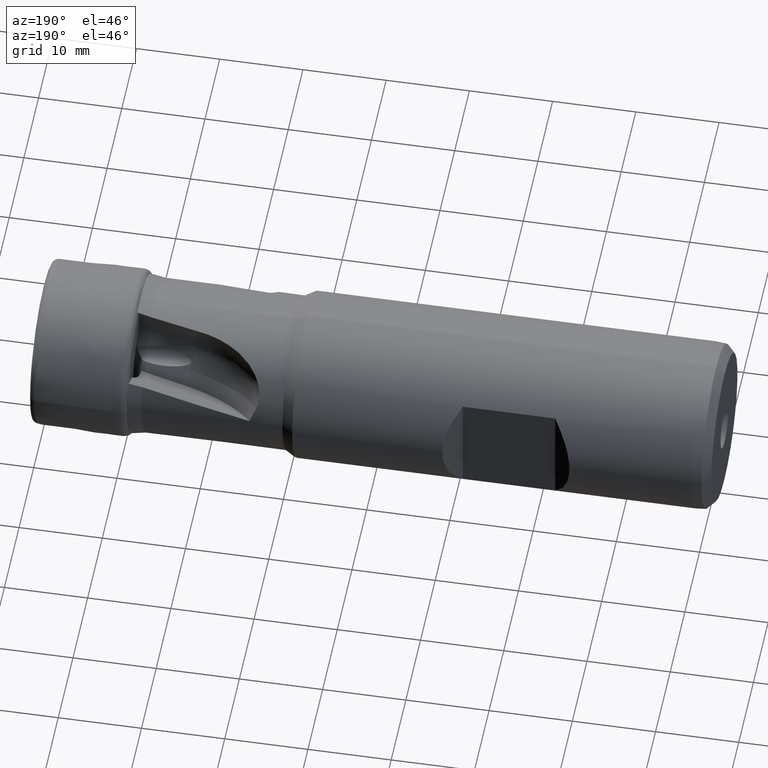
[diagram: clean part render]
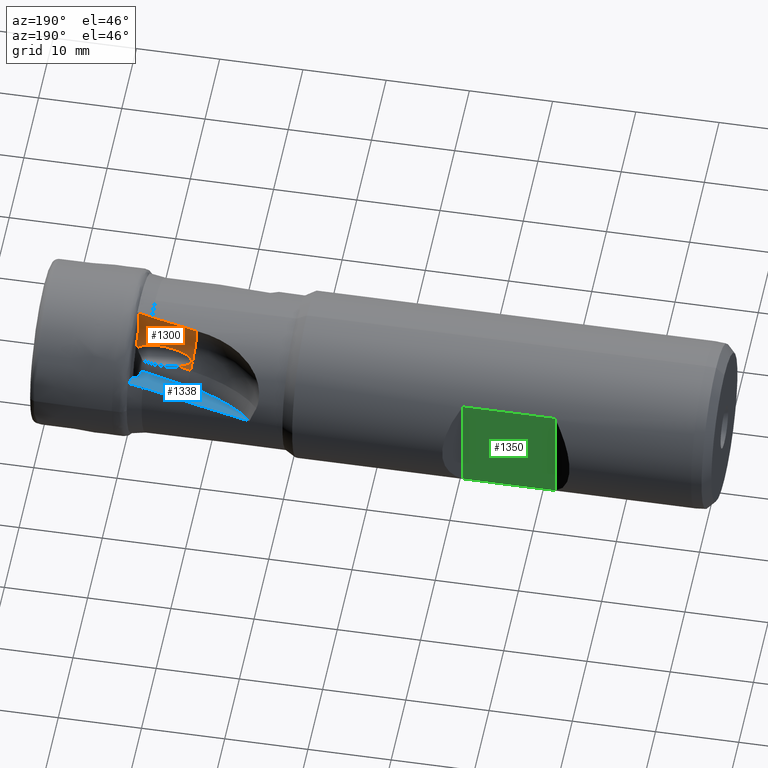
[diagram: same view with three faces highlighted in distinct colors, each labeled with its STEP entity id]
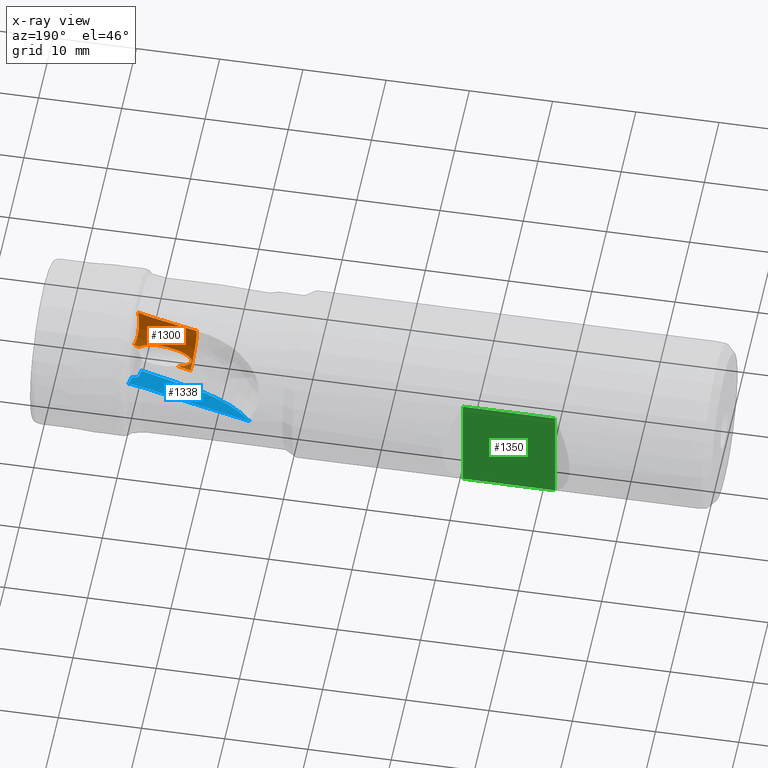
[diagram: x-ray of the same camera — body ghosted, the three highlighted faces saturated]
A machine part, auxiliary view with three faces highlighted in distinct colors.
The next image is the same camera in x-ray (body ghosted, the three faces saturated) — at least one of them is partly hidden behind the body in this view.
Their STEP definitions:

[orange] entity #1300 — the highlighted face is a freeform B-spline surface patch.
#116 = VERTEX_POINT ( 'NONE', #2259 ) ;
#124 = VERTEX_POINT ( 'NONE', #2232 ) ;
#177 = VERTEX_POINT ( 'NONE', #2177 ) ;
#262 = VERTEX_POINT ( 'NONE', #2156 ) ;
#297 = VERTEX_POINT ( 'NONE', #2001 ) ;
#310 = VERTEX_POINT ( 'NONE', #2191 ) ;
#319 = VERTEX_POINT ( 'NONE', #2003 ) ;
#354 = ORIENTED_EDGE ( 'NONE', *, *, #3125, .F. ) ;
#370 = ORIENTED_EDGE ( 'NONE', *, *, #1220, .T. ) ;
#398 = ORIENTED_EDGE ( 'NONE', *, *, #1807, .F. ) ;
#400 = VERTEX_POINT ( 'NONE', #2295 ) ;
#421 = ORIENTED_EDGE ( 'NONE', *, *, #1196, .T. ) ;
#437 = VERTEX_POINT ( 'NONE', #2053 ) ;
#439 = ORIENTED_EDGE ( 'NONE', *, *, #3134, .F. ) ;
#442 = ORIENTED_EDGE ( 'NONE', *, *, #3126, .T. ) ;
#443 = ORIENTED_EDGE ( 'NONE', *, *, #3143, .T. ) ;
#463 = ORIENTED_EDGE ( 'NONE', *, *, #3142, .F. ) ;
#481 = ORIENTED_EDGE ( 'NONE', *, *, #1657, .T. ) ;
#1190 = FACE_OUTER_BOUND ( 'NONE', #4072, .T. ) ;
#1196 = EDGE_CURVE ( 'NONE', #177, #116, #3405, .T. ) ;
#1220 = EDGE_CURVE ( 'NONE', #124, #297, #3386, .T. ) ;
#1300 = ADVANCED_FACE ( 'NONE', ( #1190 ), #3411, .F. ) ;
#1657 = EDGE_CURVE ( 'NONE', #400, #437, #3289, .T. ) ;
#1784 = AXIS2_PLACEMENT_3D ( 'NONE', #3604, #3605, #3606 ) ;
#1797 = VECTOR ( 'NONE', #3682, 1000.000000000000100 ) ;
#1806 = LINE ( 'NONE', #3680, #1797 ) ;
#1807 = EDGE_CURVE ( 'NONE', #310, #116, #5012, .T. ) ;
#1933 = CARTESIAN_POINT ( 'NONE',  ( -17.46522689833240700, 2.799821953168184100, 2.183394017990658100 ) ) ;
#1951 = CARTESIAN_POINT ( 'NONE',  ( -16.94430054065681500, 2.912568009919917200, 1.911020669193566500 ) ) ;
#1956 = CARTESIAN_POINT ( 'NONE',  ( -16.13219586055020800, 3.010105745236067300, 1.713733694591605100 ) ) ;
#1961 = CARTESIAN_POINT ( 'NONE',  ( -16.60396216011053700, 2.961945548118454200, 1.804178023644419400 ) ) ;
#1962 = CARTESIAN_POINT ( 'NONE',  ( -17.26957665637938200, 2.852614918489111000, 2.050427739889873800 ) ) ;
#1963 = CARTESIAN_POINT ( 'NONE',  ( -16.36887203447431100, 2.988090758630610000, 1.753449781759514900 ) ) ;
#2001 = CARTESIAN_POINT ( 'NONE',  ( -10.65883506706973600, 2.107348991518373600, 3.427514095784790300 ) ) ;
#2003 = CARTESIAN_POINT ( 'NONE',  ( -10.96232459309051200, 2.138623425094442300, 3.371093524094496400 ) ) ;
#2044 = CARTESIAN_POINT ( 'NONE',  ( -17.05540043705521600, 2.894448306274053800, 1.951701670853473600 ) ) ;
#2053 = CARTESIAN_POINT ( 'NONE',  ( -12.83564090980890700, 2.466131658906649500, 8.915194593554289800 ) ) ;
#2156 = CARTESIAN_POINT ( 'NONE',  ( -11.17752535863014200, 2.183543052836082400, 3.277802954148884700 ) ) ;
#2177 = CARTESIAN_POINT ( 'NONE',  ( -17.46522689833240700, 2.799821953168184100, 2.183394017990658100 ) ) ;
#2183 = CARTESIAN_POINT ( 'NONE',  ( -17.37471343747096600, 2.828635604581747600, 2.109059805818003200 ) ) ;
#2191 = CARTESIAN_POINT ( 'NONE',  ( -17.64864418217819900, 3.166374934911661200, 1.431816613739262700 ) ) ;
#2232 = CARTESIAN_POINT ( 'NONE',  ( -11.09937587078961100, 2.304786238743299800, 9.274048216757258000 ) ) ;
#2259 = CARTESIAN_POINT ( 'NONE',  ( -16.13219586055020800, 3.010105745236067300, 1.713733694591605100 ) ) ;
#2295 = CARTESIAN_POINT ( 'NONE',  ( -18.40126246938588000, 3.434530612514915300, 8.588742601318189800 ) ) ;
#2761 = CARTESIAN_POINT ( 'NONE',  ( -16.54807618838606600, 3.107516319161100200, 8.719511522147326900 ) ) ;
#2770 = CARTESIAN_POINT ( 'NONE',  ( -18.40126246938588000, 3.434530612514915300, 8.588742601318189800 ) ) ;
#3125 = EDGE_CURVE ( 'NONE', #400, #310, #3145, .T. ) ;
#3126 = EDGE_CURVE ( 'NONE', #262, #177, #3353, .T. ) ;
#3134 = EDGE_CURVE ( 'NONE', #262, #319, #3331, .T. ) ;
#3142 = EDGE_CURVE ( 'NONE', #319, #297, #1806, .T. ) ;
#3143 = EDGE_CURVE ( 'NONE', #437, #124, #3349, .T. ) ;
#3145 = CIRCLE ( 'NONE', #1784, 7.000000000000000900 ) ;
#3289 = B_SPLINE_CURVE_WITH_KNOTS ( 'NONE', 3,
 ( #2770, #2761, #3420, #3421 ),
 .UNSPECIFIED., .F., .F.,
 ( 4, 4 ),
 ( 0.0000000000000000000, 0.005658666873125904600 ),
 .UNSPECIFIED. ) ;
#3331 = B_SPLINE_CURVE_WITH_KNOTS ( 'NONE', 3,
 ( #3651, #3652, #3658, #3659 ),
 .UNSPECIFIED., .F., .F.,
 ( 4, 4 ),
 ( 0.0009500122115599523600, 0.001186084466595385000 ),
 .UNSPECIFIED. ) ;
#3349 = B_SPLINE_CURVE_WITH_KNOTS ( 'NONE', 3,
 ( #3681, #3671, #3685, #3686 ),
 .UNSPECIFIED., .F., .F.,
 ( 4, 4 ),
 ( 1.734723475976806900E-018, 0.001780286648976586300 ),
 .UNSPECIFIED. ) ;
#3353 = B_SPLINE_CURVE_WITH_KNOTS ( 'NONE', 3,
 ( #3602, #3603, #3608, #3609, #3610, #3611, #3612, #3613, #3614, #3615, #3616, #3617, #3618, #3619, #3620, #3621, #3622, #3623, #3624, #3625, #3626, #3627, #3628, #3629, #3630, #3631 ),
 .UNSPECIFIED., .F., .F.,
 ( 4, 2, 2, 2, 2, 2, 2, 2, 2, 2, 2, 2, 4 ),
 ( 0.0008014767216611273100, 0.001275271793795700700, 0.001749066865930274000, 0.002696657010199415800, 0.004591837298737699200, 0.005539427443006840000, 0.006487017587275981600, 0.006960812659410547200, 0.007434607731545112900, 0.007671505267612396100, 0.007908402803679678500, 0.008145300339746960900, 0.008382197875814243300 ),
 .UNSPECIFIED. ) ;
#3386 = B_SPLINE_CURVE_WITH_KNOTS ( 'NONE', 3,
 ( #4523, #4420, #4418, #4470, #4410, #4467, #4469, #4405, #4431, #4412, #4429, #4416, #4404, #4422, #4423, #4387, #4240, #4385 ),
 .UNSPECIFIED., .F., .F.,
 ( 4, 2, 2, 2, 2, 2, 2, 2, 4 ),
 ( 0.01123332474877627500, 0.01159729395884079700, 0.01177927856387306000, 0.01196126316890532400, 0.01268920158903438300, 0.01414507842929250300, 0.01560095526955062100, 0.01632889368967967900, 0.01705683210980873900 ),
 .UNSPECIFIED. ) ;
#3405 = B_SPLINE_CURVE_WITH_KNOTS ( 'NONE', 3,
 ( #1933, #2183, #1962, #2044, #1951, #1961, #1963, #1956 ),
 .UNSPECIFIED., .F., .F.,
 ( 4, 2, 2, 4 ),
 ( 0.008382197875814243300, 0.008745336679523121200, 0.009108475483231999100, 0.009834753090649753200 ),
 .UNSPECIFIED. ) ;
#3411 =( BOUNDED_SURFACE ( )  B_SPLINE_SURFACE ( 3, 1, ( 
 ( #4182, #4110 ),
 ( #4126, #4116 ),
 ( #4113, #4119 ),
 ( #4128, #4129 ) ),
 .UNSPECIFIED., .F., .F., .F. ) 
 B_SPLINE_SURFACE_WITH_KNOTS ( ( 4, 4 ),
 ( 2, 2 ),
 ( 0.0000000000000000000, 1.000000000000000000 ),
 ( 0.0000000000000000000, 1.000000000000000000 ),
 .UNSPECIFIED. ) 
 GEOMETRIC_REPRESENTATION_ITEM ( )  RATIONAL_B_SPLINE_SURFACE ( (
 ( 1.000000000000000000, 1.000000000000000000),
 ( 0.9039250821305300200, 0.9039250821305300200),
 ( 0.9039250821305300200, 0.9039250821305300200),
 ( 1.000000000000000000, 1.000000000000000000) ) ) 
 REPRESENTATION_ITEM ( '' )  SURFACE ( )  );
#3420 = CARTESIAN_POINT ( 'NONE',  ( -14.69325504867553900, 2.782298189544905500, 8.827736234399905500 ) ) ;
#3421 = CARTESIAN_POINT ( 'NONE',  ( -12.83564090980890700, 2.466131658906649500, 8.915194593554289800 ) ) ;
#3422 = CARTESIAN_POINT ( 'NONE',  ( -17.64864418217819900, 3.166374934911661200, 1.431816613739262700 ) ) ;
#3423 = DIRECTION ( 'NONE',  ( 0.9781476007338090200, -0.1007975878701224800, 0.1818436621338723500 ) ) ;
#3602 = CARTESIAN_POINT ( 'NONE',  ( -11.17752535863014200, 2.183543052836082400, 3.277802954148884700 ) ) ;
#3603 = CARTESIAN_POINT ( 'NONE',  ( -11.30885261661618400, 2.151763621581577200, 3.358384825408077500 ) ) ;
#3604 = CARTESIAN_POINT ( 'NONE',  ( -17.64864418217819900, 9.288712884887463200, 4.825483955463566200 ) ) ;
#3605 = DIRECTION ( 'NONE',  ( 0.9925461516413238700, -0.05908343009591252700, 0.1065893294382693800 ) ) ;
#3606 = DIRECTION ( 'NONE',  ( 0.1218693434051338200, 0.4811959228541853900, -0.8681004244708733200 ) ) ;
#3608 = CARTESIAN_POINT ( 'NONE',  ( -11.45115734721291800, 2.128388672646276200, 3.426760259628591800 ) ) ;
#3609 = CARTESIAN_POINT ( 'NONE',  ( -11.74087833559986800, 2.092747404467964600, 3.544340884989738400 ) ) ;
#3610 = CARTESIAN_POINT ( 'NONE',  ( -11.88896732621933900, 2.080400225655109300, 3.593815215469864800 ) ) ;
#3611 = CARTESIAN_POINT ( 'NONE',  ( -12.34017865513541800, 2.054109663397396100, 3.721963592630189100 ) ) ;
#3612 = CARTESIAN_POINT ( 'NONE',  ( -12.65221214960188300, 2.050842735308856700, 3.780671139768825300 ) ) ;
#3613 = CARTESIAN_POINT ( 'NONE',  ( -13.58361935143312700, 2.064239262190591200, 3.895313520199637800 ) ) ;
#3614 = CARTESIAN_POINT ( 'NONE',  ( -14.20525960419361100, 2.102410582023665600, 3.894464655916932900 ) ) ;
#3615 = CARTESIAN_POINT ( 'NONE',  ( -15.13928489955771200, 2.180934876888890500, 3.797079283476626300 ) ) ;
#3616 = CARTESIAN_POINT ( 'NONE',  ( -15.44823605671247600, 2.210884821513784600, 3.748091789552429300 ) ) ;
#3617 = CARTESIAN_POINT ( 'NONE',  ( -16.05551188032974600, 2.278525965431764000, 3.613096843262857000 ) ) ;
#3618 = CARTESIAN_POINT ( 'NONE',  ( -16.35647951773730200, 2.316254425195014100, 3.527200342874304600 ) ) ;
#3619 = CARTESIAN_POINT ( 'NONE',  ( -16.79099730433605200, 2.382996031980780100, 3.356475259842080800 ) ) ;
#3620 = CARTESIAN_POINT ( 'NONE',  ( -16.93238575935566100, 2.406851963904189400, 3.292809668442920200 ) ) ;
#3621 = CARTESIAN_POINT ( 'NONE',  ( -17.20387175425366900, 2.460666958471737800, 3.143682871538218100 ) ) ;
#3622 = CARTESIAN_POINT ( 'NONE',  ( -17.33513115047088200, 2.490508660333109700, 3.058455591206203500 ) ) ;
#3623 = CARTESIAN_POINT ( 'NONE',  ( -17.50328538996126300, 2.544473088353330400, 2.901652883831633100 ) ) ;
#3624 = CARTESIAN_POINT ( 'NONE',  ( -17.55505965090116000, 2.564297957093153000, 2.843676562525371500 ) ) ;
#3625 = CARTESIAN_POINT ( 'NONE',  ( -17.63543126627023800, 2.608504120629171900, 2.714698860995227800 ) ) ;
#3626 = CARTESIAN_POINT ( 'NONE',  ( -17.66364868274443700, 2.632854157886512800, 2.643778536248634100 ) ) ;
#3627 = CARTESIAN_POINT ( 'NONE',  ( -17.67376332286900000, 2.685482976049005100, 2.493150214780011100 ) ) ;
#3628 = CARTESIAN_POINT ( 'NONE',  ( -17.65353218554945200, 2.712050994590154800, 2.418569552739579600 ) ) ;
#3629 = CARTESIAN_POINT ( 'NONE',  ( -17.57809588592769500, 2.759682569599817300, 2.288395149217775400 ) ) ;
#3630 = CARTESIAN_POINT ( 'NONE',  ( -17.52427433595128600, 2.781025055245793400, 2.231886747297884700 ) ) ;
#3631 = CARTESIAN_POINT ( 'NONE',  ( -17.46522689833240700, 2.799821953168184100, 2.183394017990658100 ) ) ;
#3651 = CARTESIAN_POINT ( 'NONE',  ( -11.17752535863014200, 2.183543052836082400, 3.277802954148884700 ) ) ;
#3652 = CARTESIAN_POINT ( 'NONE',  ( -11.11392473268068300, 2.162724611409971900, 3.322679605268769700 ) ) ;
#3658 = CARTESIAN_POINT ( 'NONE',  ( -11.04150260293054800, 2.146782676723227200, 3.356373844508739900 ) ) ;
#3659 = CARTESIAN_POINT ( 'NONE',  ( -10.96232459309051200, 2.138623425094442300, 3.371093524094496400 ) ) ;
#3671 = CARTESIAN_POINT ( 'NONE',  ( -12.25704713771456500, 2.412814289243917300, 9.035796370806387800 ) ) ;
#3680 = CARTESIAN_POINT ( 'NONE',  ( -17.74116320764180100, 2.837179124045200700, 2.110865683470295000 ) ) ;
#3681 = CARTESIAN_POINT ( 'NONE',  ( -12.83564090980890700, 2.466131658906649500, 8.915194593554289800 ) ) ;
#3682 = DIRECTION ( 'NONE',  ( 0.9781476007338090200, -0.1007975878701224800, 0.1818436621338723500 ) ) ;
#3685 = CARTESIAN_POINT ( 'NONE',  ( -11.67828509810735400, 2.359024596544543800, 9.155386551675938700 ) ) ;
#3686 = CARTESIAN_POINT ( 'NONE',  ( -11.09937587078961100, 2.304786238743299800, 9.274048216757258000 ) ) ;
#4072 = EDGE_LOOP ( 'NONE', ( #443, #370, #463, #439, #442, #421, #398, #354, #481 ) ) ;
#4110 = CARTESIAN_POINT ( 'NONE',  ( -11.10690302174767700, 2.707444169062200000, 9.983171597911416800 ) ) ;
#4113 = CARTESIAN_POINT ( 'NONE',  ( -17.97402750741462500, 1.881612704364424200, 3.749589031815561100 ) ) ;
#4116 = CARTESIAN_POINT ( 'NONE',  ( -10.95557138676789300, 1.237719270005504900, 7.759309026454942200 ) ) ;
#4119 = CARTESIAN_POINT ( 'NONE',  ( -10.67707982590374100, 1.129666142762683700, 5.106136538357276300 ) ) ;
#4126 = CARTESIAN_POINT ( 'NONE',  ( -18.25251906827877600, 1.989665831607245500, 6.402761519913230600 ) ) ;
#4128 = CARTESIAN_POINT ( 'NONE',  ( -17.64864418217819900, 3.166374934911659000, 1.431816613739263200 ) ) ;
#4129 = CARTESIAN_POINT ( 'NONE',  ( -10.35169650066731300, 2.414428373309918100, 2.788364120280977200 ) ) ;
#4182 = CARTESIAN_POINT ( 'NONE',  ( -18.40385070325856300, 3.459390730663940400, 8.626624091369702500 ) ) ;
#4240 = CARTESIAN_POINT ( 'NONE',  ( -10.74646357564725500, 2.016537620952291800, 3.647744399479894800 ) ) ;
#4385 = CARTESIAN_POINT ( 'NONE',  ( -10.65883506706973600, 2.107348991518373600, 3.427514095784790300 ) ) ;
#4387 = CARTESIAN_POINT ( 'NONE',  ( -10.83210508685646200, 1.938084354857197500, 3.873385201849437500 ) ) ;
#4404 = CARTESIAN_POINT ( 'NONE',  ( -11.14890330504311000, 1.616061011851297900, 5.329500065799226900 ) ) ;
#4405 = CARTESIAN_POINT ( 'NONE',  ( -11.19614596159044800, 1.937235590199733600, 8.337919217390259900 ) ) ;
#4410 = CARTESIAN_POINT ( 'NONE',  ( -11.20633693588517100, 2.118146009683159900, 8.814436010362028300 ) ) ;
#4412 = CARTESIAN_POINT ( 'NONE',  ( -11.17909095284234900, 1.677475930930630000, 7.355844169370832300 ) ) ;
#4416 = CARTESIAN_POINT ( 'NONE',  ( -11.15389228143928500, 1.577189679261319600, 5.836259229300512000 ) ) ;
#4418 = CARTESIAN_POINT ( 'NONE',  ( -11.19873458830307000, 2.216746525790191900, 9.049465891805194700 ) ) ;
#4420 = CARTESIAN_POINT ( 'NONE',  ( -11.16225920364285100, 2.264876080658136300, 9.167839008306213300 ) ) ;
#4422 = CARTESIAN_POINT ( 'NONE',  ( -11.03218861539839100, 1.746643680721788900, 4.588701530933096100 ) ) ;
#4423 = CARTESIAN_POINT ( 'NONE',  ( -10.97498277521886200, 1.803175285126972000, 4.342984989273894300 ) ) ;
#4429 = CARTESIAN_POINT ( 'NONE',  ( -11.17062128717529400, 1.608091320834620600, 6.855251908864316200 ) ) ;
#4431 = CARTESIAN_POINT ( 'NONE',  ( -11.19186095471440500, 1.861901129325368700, 8.093469186480989600 ) ) ;
#4467 = CARTESIAN_POINT ( 'NONE',  ( -11.20182718217961200, 2.070371763350080200, 8.696254679077814100 ) ) ;
#4469 = CARTESIAN_POINT ( 'NONE',  ( -11.20145775587290300, 2.047596478545146100, 8.636760856483617100 ) ) ;
#4470 = CARTESIAN_POINT ( 'NONE',  ( -11.21104234025057000, 2.143251154131875900, 8.873089010449049900 ) ) ;
#4523 = CARTESIAN_POINT ( 'NONE',  ( -11.09937587078961100, 2.304786238743299800, 9.274048216757258000 ) ) ;
#5012 = LINE ( 'NONE', #3422, #5013 ) ;
#5013 = VECTOR ( 'NONE', #3423, 1000.000000000000100 ) ;

[blue] entity #1338 — the highlighted planar face has unit normal (0.2079, 0.4742, -0.8555).
#6 = CIRCLE ( 'NONE', #1662, 10.00001983290760100 ) ;
#107 = EDGE_CURVE ( 'NONE', #301, #175, #3324, .T. ) ;
#128 = VERTEX_POINT ( 'NONE', #2229 ) ;
#136 = VERTEX_POINT ( 'NONE', #2221 ) ;
#137 = VERTEX_POINT ( 'NONE', #2220 ) ;
#175 = VERTEX_POINT ( 'NONE', #2179 ) ;
#249 = VERTEX_POINT ( 'NONE', #2171 ) ;
#252 = EDGE_CURVE ( 'NONE', #175, #128, #3290, .T. ) ;
#256 = VERTEX_POINT ( 'NONE', #2162 ) ;
#273 = VERTEX_POINT ( 'NONE', #2146 ) ;
#277 = EDGE_CURVE ( 'NONE', #273, #256, #6, .T. ) ;
#285 = EDGE_CURVE ( 'NONE', #136, #249, #3382, .T. ) ;
#301 = VERTEX_POINT ( 'NONE', #2009 ) ;
#366 = ORIENTED_EDGE ( 'NONE', *, *, #285, .T. ) ;
#372 = ORIENTED_EDGE ( 'NONE', *, *, #5047, .T. ) ;
#375 = ORIENTED_EDGE ( 'NONE', *, *, #1654, .F. ) ;
#384 = ORIENTED_EDGE ( 'NONE', *, *, #252, .F. ) ;
#409 = ORIENTED_EDGE ( 'NONE', *, *, #277, .F. ) ;
#431 = ORIENTED_EDGE ( 'NONE', *, *, #5046, .T. ) ;
#446 = ORIENTED_EDGE ( 'NONE', *, *, #3789, .F. ) ;
#452 = VERTEX_POINT ( 'NONE', #2055 ) ;
#460 = ORIENTED_EDGE ( 'NONE', *, *, #1208, .T. ) ;
#476 = ORIENTED_EDGE ( 'NONE', *, *, #107, .F. ) ;
#1129 = VECTOR ( 'NONE', #1632, 1000.000000000000100 ) ;
#1208 = EDGE_CURVE ( 'NONE', #137, #136, #3373, .T. ) ;
#1223 = LINE ( 'NONE', #1631, #1129 ) ;
#1338 = ADVANCED_FACE ( 'NONE', ( #5060 ), #4687, .F. ) ;
#1627 = CARTESIAN_POINT ( 'NONE',  ( -17.33695524366237700, 8.984366226036176100, 2.403632261263368700 ) ) ;
#1628 = CARTESIAN_POINT ( 'NONE',  ( -12.83564090980894600, 8.638983179848455800, 3.306126074168268300 ) ) ;
#1631 = CARTESIAN_POINT ( 'NONE',  ( -17.40490549536792700, 4.128766780620034100, -0.3043842352024833700 ) ) ;
#1632 = DIRECTION ( 'NONE',  ( 0.9781476007338090200, -0.1007975878701224800, 0.1818436621338723500 ) ) ;
#1633 = CARTESIAN_POINT ( 'NONE',  ( -21.68450929364692200, 9.185275501043204100, 1.458423292758688400 ) ) ;
#1634 = CARTESIAN_POINT ( 'NONE',  ( -25.77262820655407800, 9.236827555946195600, 0.4934741145317769200 ) ) ;
#1654 = EDGE_CURVE ( 'NONE', #137, #452, #3284, .T. ) ;
#1662 = AXIS2_PLACEMENT_3D ( 'NONE', #2141, #2140, #2139 ) ;
#1752 = AXIS2_PLACEMENT_3D ( 'NONE', #4671, #4689, #4690 ) ;
#1795 = LINE ( 'NONE', #3688, #1798 ) ;
#1798 = VECTOR ( 'NONE', #3699, 1000.000000000000000 ) ;
#1923 = CARTESIAN_POINT ( 'NONE',  ( -11.15088434224016600, 8.691491548319655500, 3.744673962239723600 ) ) ;
#1926 = CARTESIAN_POINT ( 'NONE',  ( -11.19514898302552700, 7.848033348424562100, 3.266379926536031600 ) ) ;
#1927 = CARTESIAN_POINT ( 'NONE',  ( -11.18530520732198300, 8.604035141150939500, 3.687830870467094300 ) ) ;
#1928 = CARTESIAN_POINT ( 'NONE',  ( -11.18428575094526100, 7.277815658950348900, 2.952943163112594000 ) ) ;
#1930 = CARTESIAN_POINT ( 'NONE',  ( -11.19871480740141900, 8.038101033034058300, 3.370869571443296600 ) ) ;
#1976 = CARTESIAN_POINT ( 'NONE',  ( -11.16982641987352800, 6.517527576181609400, 2.535022610913111300 ) ) ;
#1992 = CARTESIAN_POINT ( 'NONE',  ( -11.17705038414828200, 6.897671155832435700, 2.743984016623340700 ) ) ;
#2009 = CARTESIAN_POINT ( 'NONE',  ( -11.82737707271682700, 3.886372314375307700, 0.9167466017628712600 ) ) ;
#2030 = CARTESIAN_POINT ( 'NONE',  ( -11.20423790707267900, 8.323217953360908100, 3.527570196497625200 ) ) ;
#2031 = CARTESIAN_POINT ( 'NONE',  ( -11.21532609779782400, 8.420304022537180800, 3.578691149144565200 ) ) ;
#2033 = CARTESIAN_POINT ( 'NONE',  ( -11.09937587081144300, 8.768239840445495800, 3.799734205624077700 ) ) ;
#2055 = CARTESIAN_POINT ( 'NONE',  ( -11.82737707271682800, 5.394481833864643000, 1.752705358997876700 ) ) ;
#2077 = CARTESIAN_POINT ( 'NONE',  ( -12.83564090980894600, 8.638983179848455800, 3.306126074168268300 ) ) ;
#2078 = CARTESIAN_POINT ( 'NONE',  ( -12.26782037522611500, 8.683856673715334700, 3.468995811534675500 ) ) ;
#2091 = CARTESIAN_POINT ( 'NONE',  ( -11.68904185549922500, 8.726943977211577800, 3.633538538153251500 ) ) ;
#2124 = CARTESIAN_POINT ( 'NONE',  ( -11.09937587081144300, 8.768239840445495800, 3.799734205624077700 ) ) ;
#2139 = DIRECTION ( 'NONE',  ( 0.0000000000000000000, 0.8746197071394000700, 0.4848096202463290600 ) ) ;
#2140 = DIRECTION ( 'NONE',  ( 0.2079116908177434400, 0.4742153668566159700, -0.8555071680929110500 ) ) ;
#2141 = CARTESIAN_POINT ( 'NONE',  ( -17.38542442561514200, 12.87295633817999500, 4.547333618086794300 ) ) ;
#2146 = CARTESIAN_POINT ( 'NONE',  ( -17.40490549536792700, 4.128766780620034100, -0.3043842352024833700 ) ) ;
#2162 = CARTESIAN_POINT ( 'NONE',  ( -25.77262820655407800, 9.236827555946195600, 0.4934741145317769200 ) ) ;
#2163 = CARTESIAN_POINT ( 'NONE',  ( -11.78731717688165400, 3.549877304506204600, 0.7399600247309430200 ) ) ;
#2164 = CARTESIAN_POINT ( 'NONE',  ( -11.80255173886319000, 3.613752222472544700, 0.7716640537881841500 ) ) ;
#2165 = CARTESIAN_POINT ( 'NONE',  ( -11.81347410292950800, 3.678057698314742800, 0.8046547272615098800 ) ) ;
#2168 = CARTESIAN_POINT ( 'NONE',  ( -11.82003410761579900, 3.742498406145165400, 0.8387805339491213300 ) ) ;
#2171 = CARTESIAN_POINT ( 'NONE',  ( -12.83564090980894600, 8.638983179848455800, 3.306126074168268300 ) ) ;
#2179 = CARTESIAN_POINT ( 'NONE',  ( -11.82003410761579900, 3.742498406145165400, 0.8387805339491213300 ) ) ;
#2220 = CARTESIAN_POINT ( 'NONE',  ( -11.16982641987352800, 6.517527576181609400, 2.535022610913111300 ) ) ;
#2221 = CARTESIAN_POINT ( 'NONE',  ( -11.09937587081144300, 8.768239840445495800, 3.799734205624077700 ) ) ;
#2229 = CARTESIAN_POINT ( 'NONE',  ( -11.78731717688165400, 3.549877304506204600, 0.7399600247309430200 ) ) ;
#2273 = CARTESIAN_POINT ( 'NONE',  ( -11.82492732933375200, 3.790565852153988200, 0.8642355673541056700 ) ) ;
#2286 = CARTESIAN_POINT ( 'NONE',  ( -11.82737707271682800, 3.838564739501955500, 0.8902464302825665600 ) ) ;
#2336 = CARTESIAN_POINT ( 'NONE',  ( -11.82003410761579900, 3.742498406145165400, 0.8387805339491213300 ) ) ;
#2337 = CARTESIAN_POINT ( 'NONE',  ( -11.82737707271682700, 3.886372314375307700, 0.9167466017628712600 ) ) ;
#2759 = CARTESIAN_POINT ( 'NONE',  ( -11.58881281546411300, 6.293917025966640800, 2.309248080599927400 ) ) ;
#2760 = CARTESIAN_POINT ( 'NONE',  ( -11.16982641987352800, 6.517527576181609400, 2.535022610913111300 ) ) ;
#2765 = CARTESIAN_POINT ( 'NONE',  ( -11.82737707271682700, 5.886467695308593500, 2.025417575183040800 ) ) ;
#2766 = CARTESIAN_POINT ( 'NONE',  ( -11.82737707271682800, 5.394481833864643000, 1.752705358997876700 ) ) ;
#3284 =( BOUNDED_CURVE ( )  B_SPLINE_CURVE ( 3, ( #2760, #2759, #2765, #2766 ),
 .UNSPECIFIED., .F., .F. ) 
 B_SPLINE_CURVE_WITH_KNOTS ( ( 4, 4 ),
 ( 3.714723578198914300, 4.712388980384689700 ),
 .UNSPECIFIED. ) 
 CURVE ( )  GEOMETRIC_REPRESENTATION_ITEM ( )  RATIONAL_B_SPLINE_CURVE ( ( 1.000000000000000000, 0.9187610645196154800, 0.9187610645196154800, 1.000000000000000000 ) ) 
 REPRESENTATION_ITEM ( '' )  );
#3290 =( BOUNDED_CURVE ( )  B_SPLINE_CURVE ( 3, ( #2168, #2165, #2164, #2163 ),
 .UNSPECIFIED., .F., .T. ) 
 B_SPLINE_CURVE_WITH_KNOTS ( ( 4, 4 ),
 ( 4.813541847380262700, 4.949104455717835200 ),
 .UNSPECIFIED. ) 
 CURVE ( )  GEOMETRIC_REPRESENTATION_ITEM ( )  RATIONAL_B_SPLINE_CURVE ( ( 1.000000000000000000, 0.9984691511686147900, 0.9984691511686147900, 1.000000000000000000 ) ) 
 REPRESENTATION_ITEM ( '' )  );
#3324 =( BOUNDED_CURVE ( )  B_SPLINE_CURVE ( 3, ( #2337, #2286, #2273, #2336 ),
 .UNSPECIFIED., .F., .T. ) 
 B_SPLINE_CURVE_WITH_KNOTS ( ( 4, 4 ),
 ( 4.712388980384689700, 4.813541847380262700 ),
 .UNSPECIFIED. ) 
 CURVE ( )  GEOMETRIC_REPRESENTATION_ITEM ( )  RATIONAL_B_SPLINE_CURVE ( ( 1.000000000000000000, 0.9991475231993649500, 0.9991475231993649500, 1.000000000000000000 ) ) 
 REPRESENTATION_ITEM ( '' )  );
#3373 = B_SPLINE_CURVE_WITH_KNOTS ( 'NONE', 3,
 ( #1976, #1992, #1928, #1926, #1930, #2030, #2031, #1927, #1923, #2033 ),
 .UNSPECIFIED., .F., .F.,
 ( 4, 2, 2, 2, 4 ),
 ( 0.003656521459202842700, 0.004942069451290085500, 0.005584843447333709100, 0.005906230445355520900, 0.006227617443377332600 ),
 .UNSPECIFIED. ) ;
#3381 =( BOUNDED_CURVE ( )  B_SPLINE_CURVE ( 3, ( #1628, #1627, #1633, #1634 ),
 .UNSPECIFIED., .F., .F. ) 
 B_SPLINE_CURVE_WITH_KNOTS ( ( 4, 4 ),
 ( 1.711438893934005500, 2.023567918883785400 ),
 .UNSPECIFIED. ) 
 CURVE ( )  GEOMETRIC_REPRESENTATION_ITEM ( )  RATIONAL_B_SPLINE_CURVE ( ( 1.000000000000000000, 0.9918977543086289200, 0.9918977543086289200, 1.000000000000000000 ) ) 
 REPRESENTATION_ITEM ( '' )  );
#3382 =( BOUNDED_CURVE ( )  B_SPLINE_CURVE ( 3, ( #2124, #2091, #2078, #2077 ),
 .UNSPECIFIED., .F., .T. ) 
 B_SPLINE_CURVE_WITH_KNOTS ( ( 4, 4 ),
 ( 2.601318118310227000, 2.623394745006822700 ),
 .UNSPECIFIED. ) 
 CURVE ( )  GEOMETRIC_REPRESENTATION_ITEM ( )  RATIONAL_B_SPLINE_CURVE ( ( 1.000000000000000000, 0.9999593856251968200, 0.9999593856251968200, 1.000000000000000000 ) ) 
 REPRESENTATION_ITEM ( '' )  );
#3688 = CARTESIAN_POINT ( 'NONE',  ( -11.82737707271682500, 3.554005455377798700, 0.7325126434176293400 ) ) ;
#3699 = DIRECTION ( 'NONE',  ( 5.828670879282071800E-016, -0.8746197071394002900, -0.4848096202463289000 ) ) ;
#3789 = EDGE_CURVE ( 'NONE', #452, #301, #1795, .T. ) ;
#4049 = EDGE_LOOP ( 'NONE', ( #375, #460, #366, #372, #409, #431, #384, #476, #446 ) ) ;
#4671 = CARTESIAN_POINT ( 'NONE',  ( -17.40490549536792700, 4.128766780620034100, -0.3043842352024833700 ) ) ;
#4687 = PLANE ( 'NONE',  #1752 ) ;
#4689 = DIRECTION ( 'NONE',  ( 0.2079116908177435200, 0.4742153668566159200, -0.8555071680929110500 ) ) ;
#4690 = DIRECTION ( 'NONE',  ( 0.0000000000000000000, 0.8746197071394001800, 0.4848096202463290600 ) ) ;
#5046 = EDGE_CURVE ( 'NONE', #273, #128, #1223, .T. ) ;
#5047 = EDGE_CURVE ( 'NONE', #249, #256, #3381, .T. ) ;
#5060 = FACE_OUTER_BOUND ( 'NONE', #4049, .T. ) ;

[green] entity #1350 — the highlighted planar face has unit normal (-0, -1, 0).
#146 = VERTEX_POINT ( 'NONE', #2213 ) ;
#302 = VERTEX_POINT ( 'NONE', #1999 ) ;
#407 = VERTEX_POINT ( 'NONE', #2051 ) ;
#418 = VERTEX_POINT ( 'NONE', #2025 ) ;
#1139 = VECTOR ( 'NONE', #2419, 1000.000000000000000 ) ;
#1157 = VECTOR ( 'NONE', #2380, 1000.000000000000000 ) ;
#1160 = LINE ( 'NONE', #2439, #1157 ) ;
#1168 = LINE ( 'NONE', #2378, #1139 ) ;
#1265 = EDGE_CURVE ( 'NONE', #146, #302, #1160, .T. ) ;
#1266 = EDGE_CURVE ( 'NONE', #407, #418, #1168, .T. ) ;
#1350 = ADVANCED_FACE ( 'NONE', ( #5029 ), #2754, .F. ) ;
#1460 = EDGE_LOOP ( 'NONE', ( #1519, #1531, #1520, #1498 ) ) ;
#1498 = ORIENTED_EDGE ( 'NONE', *, *, #1655, .T. ) ;
#1519 = ORIENTED_EDGE ( 'NONE', *, *, #1265, .T. ) ;
#1520 = ORIENTED_EDGE ( 'NONE', *, *, #1266, .F. ) ;
#1531 = ORIENTED_EDGE ( 'NONE', *, *, #3807, .T. ) ;
#1655 = EDGE_CURVE ( 'NONE', #407, #146, #5022, .T. ) ;
#1772 = AXIS2_PLACEMENT_3D ( 'NONE', #2752, #2756, #2757 ) ;
#1805 = LINE ( 'NONE', #3704, #4020 ) ;
#1999 = CARTESIAN_POINT ( 'NONE',  ( -51.17400000000000700, 7.900000000000002100, -6.131068422387704300 ) ) ;
#2025 = CARTESIAN_POINT ( 'NONE',  ( -62.27400000000000100, 7.899999999999994100, -6.131068422387730100 ) ) ;
#2051 = CARTESIAN_POINT ( 'NONE',  ( -62.27400000000000100, 7.899999999999994100, 6.131068422387730100 ) ) ;
#2213 = CARTESIAN_POINT ( 'NONE',  ( -51.17400000000000700, 7.900000000000002100, 6.131068422387711400 ) ) ;
#2378 = CARTESIAN_POINT ( 'NONE',  ( -62.27400000000000100, 7.900000000000003900, 23.14999999999999900 ) ) ;
#2380 = DIRECTION ( 'NONE',  ( -0.0000000000000000000, -0.0000000000000000000, -1.000000000000000000 ) ) ;
#2419 = DIRECTION ( 'NONE',  ( -0.0000000000000000000, -0.0000000000000000000, -1.000000000000000000 ) ) ;
#2439 = CARTESIAN_POINT ( 'NONE',  ( -51.17400000000000700, 7.900000000000002100, 23.14999999999999900 ) ) ;
#2752 = CARTESIAN_POINT ( 'NONE',  ( -62.27400000000000100, 7.900000000000003900, 23.14999999999999900 ) ) ;
#2754 = PLANE ( 'NONE',  #1772 ) ;
#2756 = DIRECTION ( 'NONE',  ( -1.562813942321448300E-016, -1.000000000000000000, 0.0000000000000000000 ) ) ;
#2757 = DIRECTION ( 'NONE',  ( 1.000000000000000000, -1.562813942321448300E-016, 0.0000000000000000000 ) ) ;
#2767 = CARTESIAN_POINT ( 'NONE',  ( 1.234623014433943200E-015, 7.899999999999994100, 6.131068422387730100 ) ) ;
#2768 = DIRECTION ( 'NONE',  ( 1.000000000000000000, -0.0000000000000000000, -0.0000000000000000000 ) ) ;
#3704 = CARTESIAN_POINT ( 'NONE',  ( 1.234623014433943200E-015, 7.899999999999994100, -6.131068422387730100 ) ) ;
#3705 = DIRECTION ( 'NONE',  ( -1.000000000000000000, 0.0000000000000000000, 0.0000000000000000000 ) ) ;
#3807 = EDGE_CURVE ( 'NONE', #302, #418, #1805, .T. ) ;
#4020 = VECTOR ( 'NONE', #3705, 1000.000000000000000 ) ;
#5004 = VECTOR ( 'NONE', #2768, 1000.000000000000000 ) ;
#5022 = LINE ( 'NONE', #2767, #5004 ) ;
#5029 = FACE_OUTER_BOUND ( 'NONE', #1460, .T. ) ;